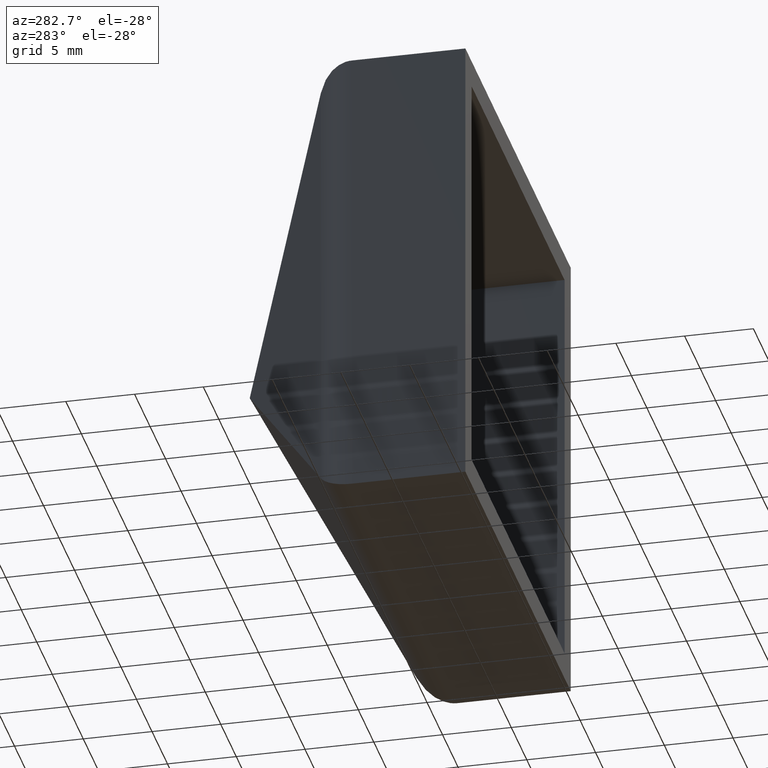
[diagram: clean part render]
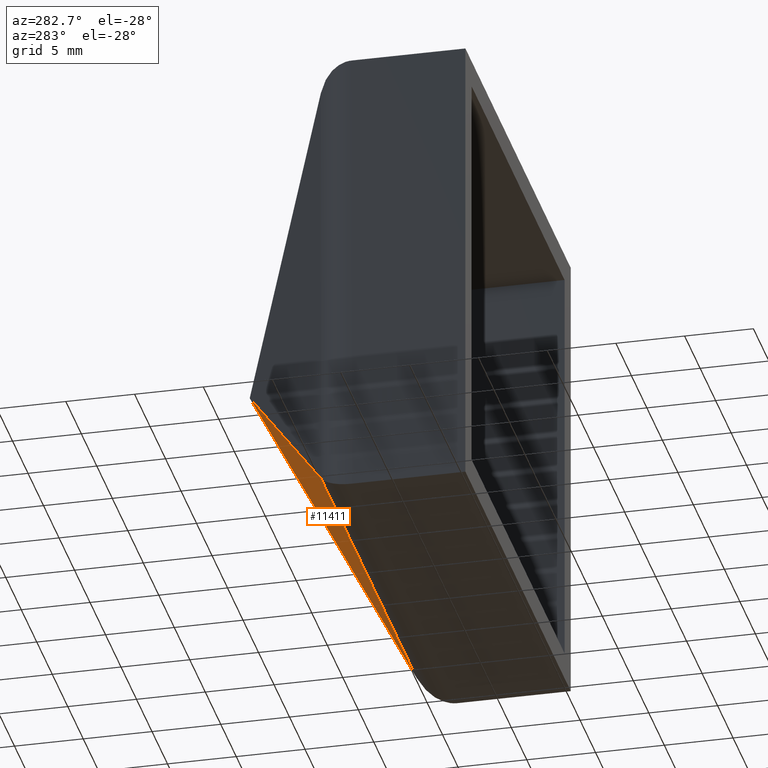
[diagram: same view with one face highlighted and labeled with its STEP entity id]
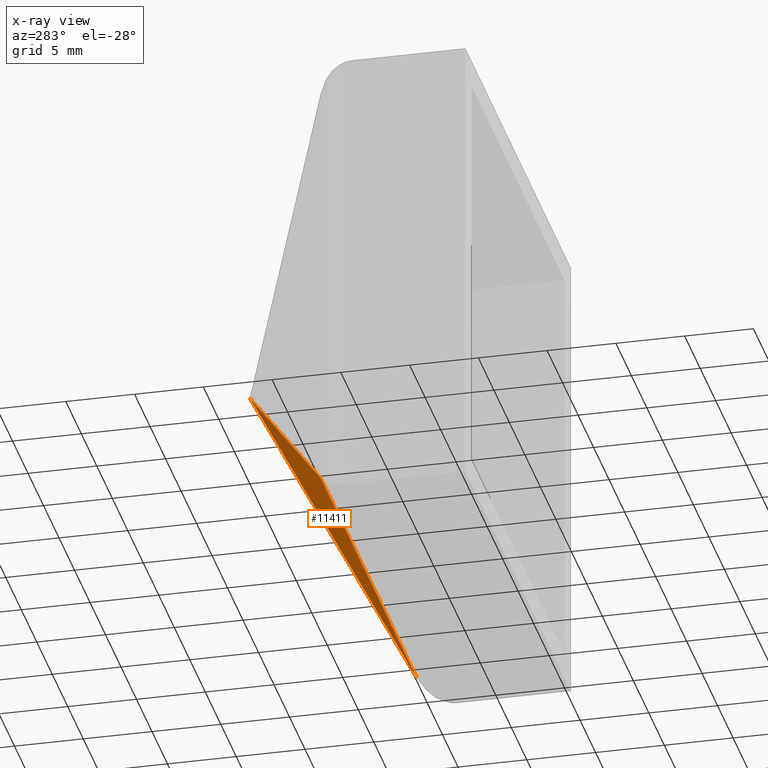
[diagram: x-ray of the same camera — body ghosted, the highlighted face saturated]
A machine part, auxiliary view. The second image highlights one B-rep face of the part: STEP entity #11411.
The next image is the same camera in x-ray: the body ghosted, the highlighted face saturated — about 0% of this face is hidden behind the body in this view.
In plain terms, the highlighted planar face has unit normal (-0, 0.8726, -0.4884).
Its self-contained STEP definition (entity closure, byte-faithful):
#5 = EDGE_CURVE ( 'NONE', #9934, #9445, #4085, .T. ) ;
#1189 = VECTOR ( 'NONE', #9958, 1000.000000000000114 ) ;
#1242 = CARTESIAN_POINT ( 'NONE',  ( -15.46517665763734506, 10.85901325649586724, -15.46517665763733795 ) ) ;
#1295 = CARTESIAN_POINT ( 'NONE',  ( -0.04883922192124370842, 19.48726242262352315, -0.04883922192124325740 ) ) ;
#1617 = VECTOR ( 'NONE', #7658, 1000.000000000000000 ) ;
#1727 = VECTOR ( 'NONE', #2141, 1000.000000000000000 ) ;
#2141 = DIRECTION ( 'NONE',  ( 1.000000000000000000, -0.000000000000000000, -4.440892098500625176E-16 ) ) ;
#2260 = ORIENTED_EDGE ( 'NONE', *, *, #5, .T. ) ;
#2582 = CARTESIAN_POINT ( 'NONE',  ( -17.00000000000002132, 10.85901325649586724, -15.46517665763733795 ) ) ;
#2865 = CARTESIAN_POINT ( 'NONE',  ( 7.376712903859408144, 15.38598218992765965, -7.376712903859399262 ) ) ;
#3096 = CARTESIAN_POINT ( 'NONE',  ( -17.00000000000002132, 10.85901325649586724, -15.46517665763733795 ) ) ;
#3260 = AXIS2_PLACEMENT_3D ( 'NONE', #2582, #9385, #10168 ) ;
#3279 = ORIENTED_EDGE ( 'NONE', *, *, #7391, .T. ) ;
#4085 = LINE ( 'NONE', #8998, #1189 ) ;
#4131 = EDGE_CURVE ( 'NONE', #9934, #10772, #9678, .T. ) ;
#4341 = LINE ( 'NONE', #8004, #1727 ) ;
#4613 = EDGE_CURVE ( 'NONE', #10781, #10772, #7439, .T. ) ;
#7029 = CARTESIAN_POINT ( 'NONE',  ( 0.04883922192124370842, 19.48726242262352315, -0.04883922192124329209 ) ) ;
#7073 = CARTESIAN_POINT ( 'NONE',  ( 15.46517665763736815, 10.85901325649586546, -15.46517665763735394 ) ) ;
#7391 = EDGE_CURVE ( 'NONE', #9445, #10781, #4341, .T. ) ;
#7439 = LINE ( 'NONE', #2865, #1617 ) ;
#7658 = DIRECTION ( 'NONE',  ( 0.6574901722213161159, -0.3679855253468108378, -0.6574901722213158939 ) ) ;
#8004 = CARTESIAN_POINT ( 'NONE',  ( -17.00000000000001776, 19.48726242262352315, -0.04883922192123572870 ) ) ;
#8998 = CARTESIAN_POINT ( 'NONE',  ( -16.12867054600092587, 10.48766755827957908, -16.12867054600091876 ) ) ;
#9093 = DIRECTION ( 'NONE',  ( 1.000000000000000000, -0.000000000000000000, -4.440892098500625176E-16 ) ) ;
#9270 = FACE_OUTER_BOUND ( 'NONE', #9907, .T. ) ;
#9292 = ORIENTED_EDGE ( 'NONE', *, *, #4131, .F. ) ;
#9385 = DIRECTION ( 'NONE',  ( -2.168897147269771016E-16, 0.8726242262352877921, -0.4883922192124536821 ) ) ;
#9445 = VERTEX_POINT ( 'NONE', #1295 ) ;
#9678 = LINE ( 'NONE', #3096, #12198 ) ;
#9907 = EDGE_LOOP ( 'NONE', ( #12247, #9292, #2260, #3279 ) ) ;
#9934 = VERTEX_POINT ( 'NONE', #1242 ) ;
#9958 = DIRECTION ( 'NONE',  ( 0.6574901722213160049, 0.3679855253468111154, 0.6574901722213157829 ) ) ;
#10168 = DIRECTION ( 'NONE',  ( 0.000000000000000000, 0.4883922192124536266, 0.8726242262352876811 ) ) ;
#10772 = VERTEX_POINT ( 'NONE', #7073 ) ;
#10781 = VERTEX_POINT ( 'NONE', #7029 ) ;
#11411 = ADVANCED_FACE ( 'NONE', ( #9270 ), #12200, .T. ) ;
#12198 = VECTOR ( 'NONE', #9093, 1000.000000000000000 ) ;
#12200 = PLANE ( 'NONE',  #3260 ) ;
#12247 = ORIENTED_EDGE ( 'NONE', *, *, #4613, .T. ) ;